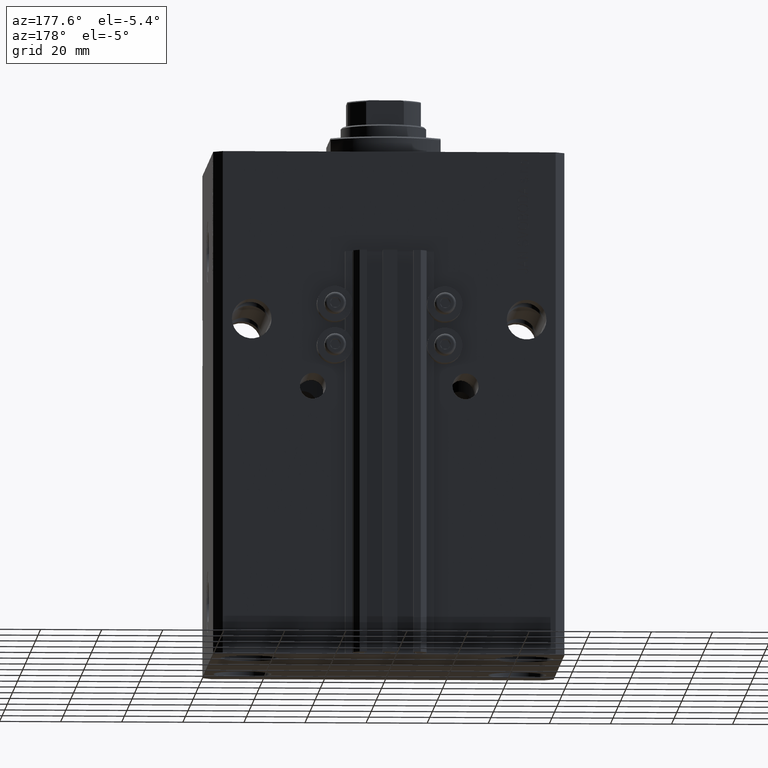
[diagram: clean part render]
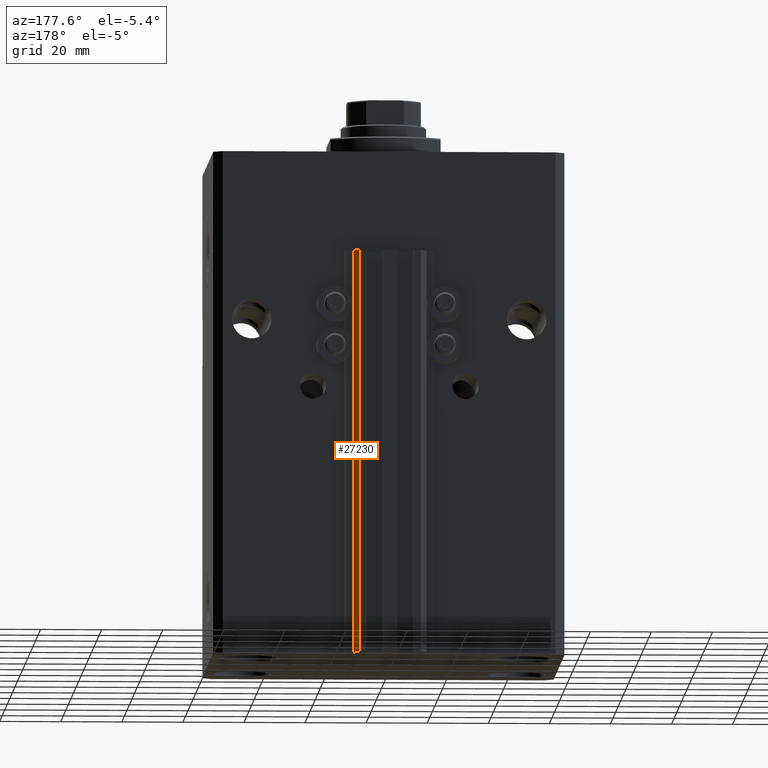
[diagram: same view with one face highlighted and labeled with its STEP entity id]
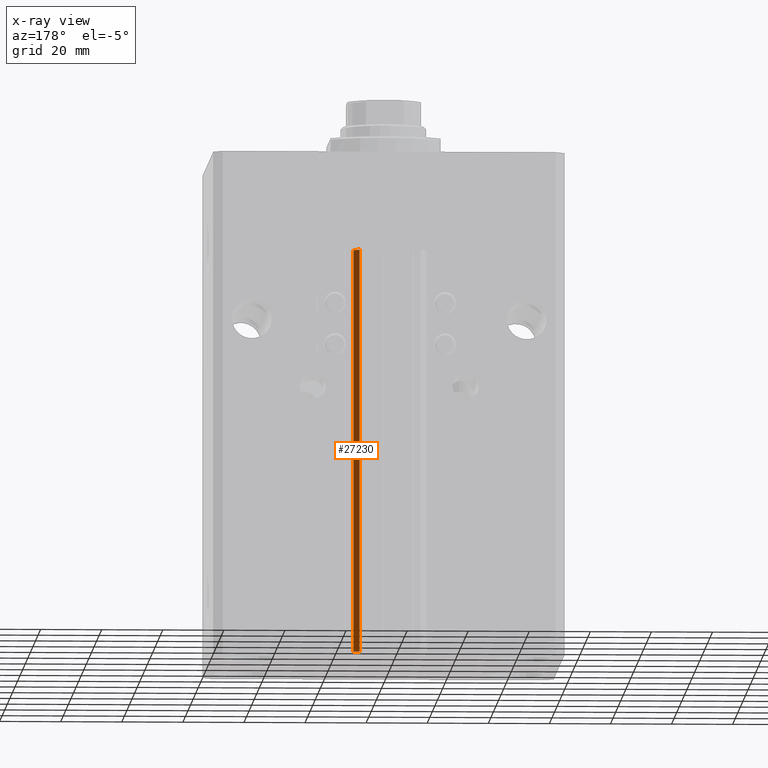
[diagram: x-ray of the same camera — body ghosted, the highlighted face saturated]
A machine part, auxiliary view. The second image highlights one B-rep face of the part: STEP entity #27230.
The next image is the same camera in x-ray: the body ghosted, the highlighted face saturated — about 0% of this face is hidden behind the body in this view.
In plain terms, the highlighted planar face has unit normal (0.7071, 0.7071, 0).
Its self-contained STEP definition (entity closure, byte-faithful):
#1530 = ORIENTED_EDGE ( 'NONE', *, *, #28567, .T. ) ;
#4309 = CARTESIAN_POINT ( 'NONE',  ( 12.00000000000000000, 51.00000000000000711, -165.0000000000000000 ) ) ;
#5299 = VECTOR ( 'NONE', #31483, 1000.000000000000000 ) ;
#6328 = VECTOR ( 'NONE', #29821, 1000.000000000000114 ) ;
#7652 = CARTESIAN_POINT ( 'NONE',  ( 12.00000000000000000, 51.00000000000000711, -165.0000000000000000 ) ) ;
#8659 = CARTESIAN_POINT ( 'NONE',  ( 9.999999999999998224, 53.00000000000000711, -165.0000000000000000 ) ) ;
#9812 = EDGE_LOOP ( 'NONE', ( #37207, #42283, #1530, #36823 ) ) ;
#9995 = CARTESIAN_POINT ( 'NONE',  ( 12.00000000000000000, 51.00000000000000711, -33.00000000000000000 ) ) ;
#11753 = LINE ( 'NONE', #27364, #38390 ) ;
#12521 = EDGE_CURVE ( 'NONE', #25184, #14313, #21540, .T. ) ;
#14313 = VERTEX_POINT ( 'NONE', #25636 ) ;
#16122 = LINE ( 'NONE', #4309, #5299 ) ;
#19371 = CARTESIAN_POINT ( 'NONE',  ( 12.00000000000000000, 51.00000000000000711, -165.0000000000000000 ) ) ;
#21397 = EDGE_CURVE ( 'NONE', #49275, #28312, #16122, .T. ) ;
#21540 = LINE ( 'NONE', #47969, #24198 ) ;
#24198 = VECTOR ( 'NONE', #40661, 1000.000000000000000 ) ;
#25184 = VERTEX_POINT ( 'NONE', #8659 ) ;
#25636 = CARTESIAN_POINT ( 'NONE',  ( 9.999999999999998224, 53.00000000000000711, -33.00000000000000000 ) ) ;
#26835 = EDGE_CURVE ( 'NONE', #28312, #14313, #11753, .T. ) ;
#27230 = ADVANCED_FACE ( 'NONE', ( #35847 ), #43888, .T. ) ;
#27364 = CARTESIAN_POINT ( 'NONE',  ( 12.00000000000000000, 51.00000000000000711, -33.00000000000000000 ) ) ;
#28312 = VERTEX_POINT ( 'NONE', #9995 ) ;
#28567 = EDGE_CURVE ( 'NONE', #49275, #25184, #49418, .T. ) ;
#29045 = CARTESIAN_POINT ( 'NONE',  ( 12.00000000000000000, 51.00000000000000711, -165.0000000000000000 ) ) ;
#29821 = DIRECTION ( 'NONE',  ( -0.7071067811865474617, 0.7071067811865474617, 0.000000000000000000 ) ) ;
#31483 = DIRECTION ( 'NONE',  ( 0.000000000000000000, 0.000000000000000000, 1.000000000000000000 ) ) ;
#32814 = DIRECTION ( 'NONE',  ( 0.7071067811865475727, 0.7071067811865475727, -0.000000000000000000 ) ) ;
#35847 = FACE_OUTER_BOUND ( 'NONE', #9812, .T. ) ;
#36823 = ORIENTED_EDGE ( 'NONE', *, *, #12521, .T. ) ;
#37207 = ORIENTED_EDGE ( 'NONE', *, *, #26835, .F. ) ;
#38390 = VECTOR ( 'NONE', #46223, 1000.000000000000114 ) ;
#40357 = DIRECTION ( 'NONE',  ( -0.7071067811865474617, 0.7071067811865474617, 0.000000000000000000 ) ) ;
#40661 = DIRECTION ( 'NONE',  ( 0.000000000000000000, 0.000000000000000000, 1.000000000000000000 ) ) ;
#42283 = ORIENTED_EDGE ( 'NONE', *, *, #21397, .F. ) ;
#42445 = AXIS2_PLACEMENT_3D ( 'NONE', #29045, #32814, #40357 ) ;
#43888 = PLANE ( 'NONE',  #42445 ) ;
#46223 = DIRECTION ( 'NONE',  ( -0.7071067811865474617, 0.7071067811865474617, 0.000000000000000000 ) ) ;
#47969 = CARTESIAN_POINT ( 'NONE',  ( 9.999999999999998224, 53.00000000000000711, -165.0000000000000000 ) ) ;
#49275 = VERTEX_POINT ( 'NONE', #19371 ) ;
#49418 = LINE ( 'NONE', #7652, #6328 ) ;